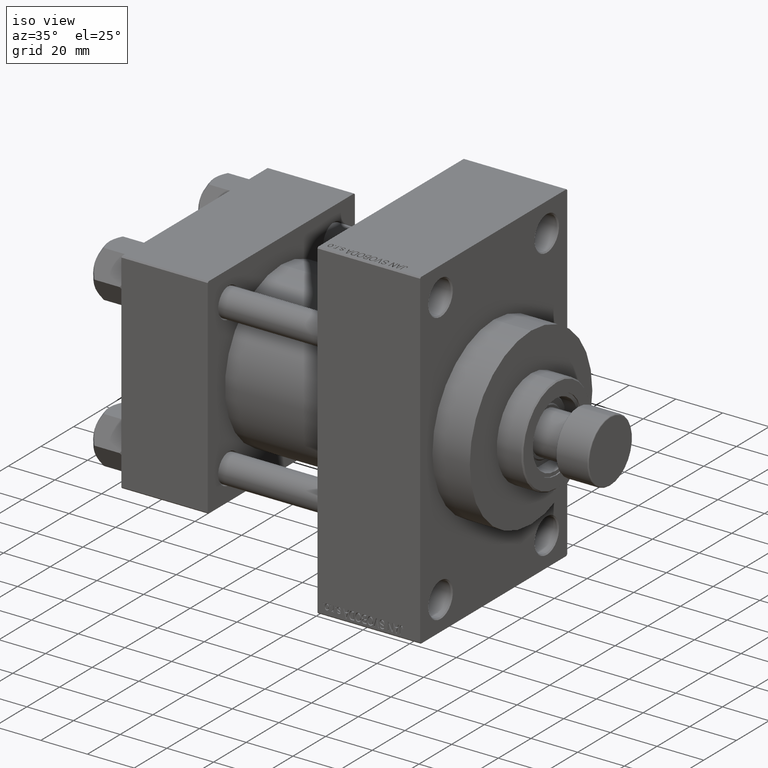
[diagram: clean part render]
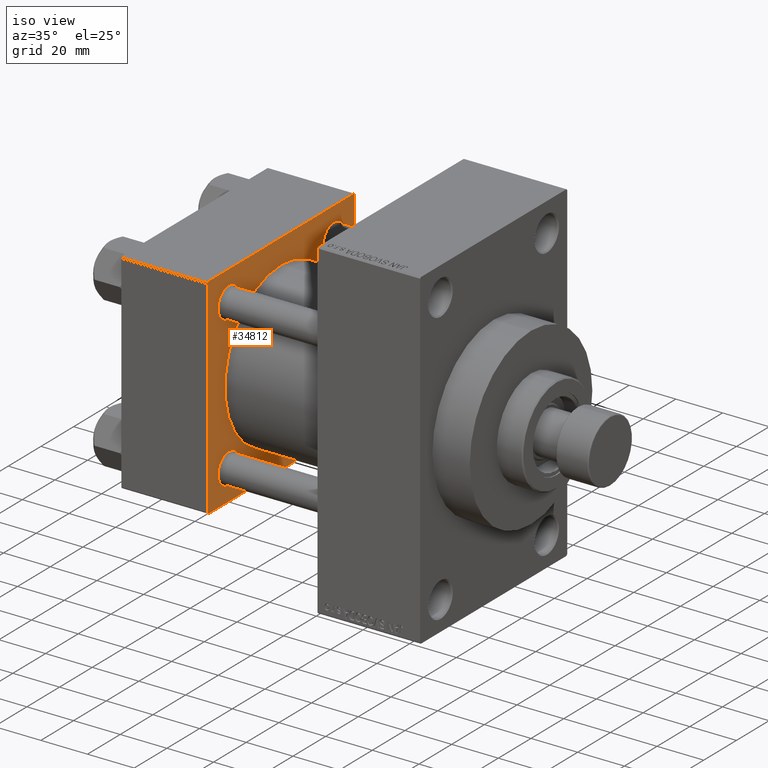
[diagram: same view with one face highlighted and labeled with its STEP entity id]
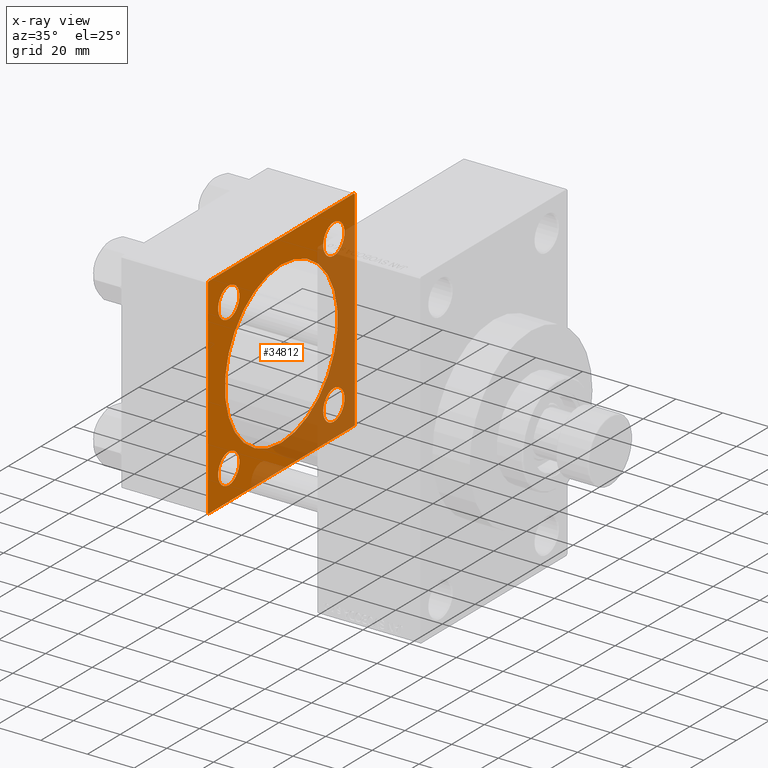
[diagram: x-ray of the same camera — body ghosted, the highlighted face saturated]
A machine part, iso view. The second image highlights one B-rep face of the part: STEP entity #34812.
The next image is the same camera in x-ray: the body ghosted, the highlighted face saturated — about 39% of this face is hidden behind the body in this view.
In plain terms, the highlighted planar face has unit normal (-1, 0, 0).
Its self-contained STEP definition (entity closure, byte-faithful):
#138 = DIRECTION ( 'NONE',  ( 0.000000000000000000, 0.000000000000000000, 1.000000000000000000 ) ) ;
#431 = DIRECTION ( 'NONE',  ( 0.000000000000000000, 0.000000000000000000, 1.000000000000000000 ) ) ;
#660 = EDGE_CURVE ( 'NONE', #42989, #23539, #40558, .T. ) ;
#1603 = DIRECTION ( 'NONE',  ( 0.000000000000000000, -0.7071067811865474617, 0.7071067811865474617 ) ) ;
#1711 = ORIENTED_EDGE ( 'NONE', *, *, #33288, .F. ) ;
#2009 = DIRECTION ( 'NONE',  ( -0.000000000000000000, 0.000000000000000000, 1.000000000000000000 ) ) ;
#2046 = DIRECTION ( 'NONE',  ( -1.000000000000000000, 0.000000000000000000, -0.000000000000000000 ) ) ;
#2251 = FACE_BOUND ( 'NONE', #13979, .T. ) ;
#2557 = CIRCLE ( 'NONE', #44162, 6.500000000000005329 ) ;
#2613 = DIRECTION ( 'NONE',  ( -1.000000000000000000, 0.000000000000000000, -0.000000000000000000 ) ) ;
#2652 = ORIENTED_EDGE ( 'NONE', *, *, #35427, .T. ) ;
#3013 = CIRCLE ( 'NONE', #31482, 6.499999999999950262 ) ;
#3442 = VECTOR ( 'NONE', #1603, 1000.000000000000114 ) ;
#3623 = LINE ( 'NONE', #10617, #11597 ) ;
#3728 = CARTESIAN_POINT ( 'NONE',  ( 37.00000000000000000, 32.14999999999999147, 25.64999999999999858 ) ) ;
#3822 = LINE ( 'NONE', #40695, #23364 ) ;
#3999 = DIRECTION ( 'NONE',  ( 1.000000000000000000, -0.000000000000000000, 0.000000000000000000 ) ) ;
#4181 = VERTEX_POINT ( 'NONE', #3728 ) ;
#4529 = EDGE_CURVE ( 'NONE', #33874, #6286, #11171, .T. ) ;
#4833 = VECTOR ( 'NONE', #24926, 1000.000000000000114 ) ;
#4974 = ORIENTED_EDGE ( 'NONE', *, *, #47462, .T. ) ;
#5203 = CARTESIAN_POINT ( 'NONE',  ( 37.00000000000000000, 44.49999999999998579, 45.00000000000001421 ) ) ;
#5278 = EDGE_LOOP ( 'NONE', ( #41322, #7133, #1711, #41857, #4974, #7514, #6397, #5755 ) ) ;
#5563 = AXIS2_PLACEMENT_3D ( 'NONE', #33154, #3999, #8109 ) ;
#5631 = CARTESIAN_POINT ( 'NONE',  ( 37.00000000000000000, 0.000000000000000000, 0.000000000000000000 ) ) ;
#5755 = ORIENTED_EDGE ( 'NONE', *, *, #28443, .T. ) ;
#6051 = DIRECTION ( 'NONE',  ( -0.000000000000000000, 0.7071067811865474617, 0.7071067811865474617 ) ) ;
#6106 = CARTESIAN_POINT ( 'NONE',  ( 37.00000000000000000, 1.622946243093158675E-15, -34.50000000000000000 ) ) ;
#6286 = VERTEX_POINT ( 'NONE', #25619 ) ;
#6397 = ORIENTED_EDGE ( 'NONE', *, *, #21825, .T. ) ;
#6716 = DIRECTION ( 'NONE',  ( 0.000000000000000000, 0.000000000000000000, 1.000000000000000000 ) ) ;
#7133 = ORIENTED_EDGE ( 'NONE', *, *, #16874, .T. ) ;
#7337 = ORIENTED_EDGE ( 'NONE', *, *, #34557, .T. ) ;
#7339 = CARTESIAN_POINT ( 'NONE',  ( 37.00000000000000000, 32.14999999999999147, 38.65000000000001279 ) ) ;
#7514 = ORIENTED_EDGE ( 'NONE', *, *, #30467, .T. ) ;
#7689 = DIRECTION ( 'NONE',  ( 0.000000000000000000, -1.000000000000000000, -1.541976423090495633E-16 ) ) ;
#8109 = DIRECTION ( 'NONE',  ( 0.000000000000000000, 0.000000000000000000, 1.000000000000000000 ) ) ;
#8194 = DIRECTION ( 'NONE',  ( -1.000000000000000000, 0.000000000000000000, -0.000000000000000000 ) ) ;
#8450 = EDGE_LOOP ( 'NONE', ( #21903, #15609 ) ) ;
#9726 = CARTESIAN_POINT ( 'NONE',  ( 37.00000000000000000, 44.99999999999998579, 45.00000000000001421 ) ) ;
#9790 = LINE ( 'NONE', #13626, #42137 ) ;
#10062 = DIRECTION ( 'NONE',  ( 0.000000000000000000, 0.7071067811865474617, -0.7071067811865474617 ) ) ;
#10503 = DIRECTION ( 'NONE',  ( 0.000000000000000000, -1.000000000000000000, -1.541976423090495387E-16 ) ) ;
#10617 = CARTESIAN_POINT ( 'NONE',  ( 37.00000000000000000, -45.00000000000000711, 45.00000000000000000 ) ) ;
#11171 = CIRCLE ( 'NONE', #11942, 6.499999999999950262 ) ;
#11597 = VECTOR ( 'NONE', #47487, 1000.000000000000000 ) ;
#11711 = VERTEX_POINT ( 'NONE', #20796 ) ;
#11759 = FACE_BOUND ( 'NONE', #8450, .T. ) ;
#11942 = AXIS2_PLACEMENT_3D ( 'NONE', #37578, #37807, #15882 ) ;
#12230 = CARTESIAN_POINT ( 'NONE',  ( 37.00000000000000000, 44.49999999999998579, 45.00000000000001421 ) ) ;
#12259 = CARTESIAN_POINT ( 'NONE',  ( 37.00000000000000000, 32.14999999999999147, -32.15000000000000568 ) ) ;
#12262 = ORIENTED_EDGE ( 'NONE', *, *, #4529, .T. ) ;
#12274 = AXIS2_PLACEMENT_3D ( 'NONE', #36786, #18493, #138 ) ;
#12307 = VECTOR ( 'NONE', #6051, 1000.000000000000114 ) ;
#12420 = CARTESIAN_POINT ( 'NONE',  ( 37.00000000000000000, 32.14999999999999147, 32.15000000000000568 ) ) ;
#13092 = CARTESIAN_POINT ( 'NONE',  ( 37.00000000000000000, 44.49999999999998579, -44.99999999999998579 ) ) ;
#13626 = CARTESIAN_POINT ( 'NONE',  ( 37.00000000000000000, 44.99999999999998579, 45.00000000000001421 ) ) ;
#13828 = LINE ( 'NONE', #12230, #3442 ) ;
#13979 = EDGE_LOOP ( 'NONE', ( #37432, #12262 ) ) ;
#14155 = CIRCLE ( 'NONE', #39535, 6.500000000000005329 ) ;
#14849 = CARTESIAN_POINT ( 'NONE',  ( 37.00000000000000000, 32.14999999999999147, -32.15000000000000568 ) ) ;
#15096 = VERTEX_POINT ( 'NONE', #29300 ) ;
#15194 = CARTESIAN_POINT ( 'NONE',  ( 37.00000000000000000, -44.49999999999995737, 45.00000000000000000 ) ) ;
#15294 = VERTEX_POINT ( 'NONE', #21067 ) ;
#15609 = ORIENTED_EDGE ( 'NONE', *, *, #15961, .F. ) ;
#15621 = DIRECTION ( 'NONE',  ( -1.000000000000000000, 0.000000000000000000, -0.000000000000000000 ) ) ;
#15882 = DIRECTION ( 'NONE',  ( 0.000000000000000000, 0.000000000000000000, 1.000000000000000000 ) ) ;
#15961 = EDGE_CURVE ( 'NONE', #33297, #32648, #33055, .T. ) ;
#16126 = ORIENTED_EDGE ( 'NONE', *, *, #34689, .T. ) ;
#16260 = DIRECTION ( 'NONE',  ( -1.000000000000000000, 0.000000000000000000, -0.000000000000000000 ) ) ;
#16499 = PLANE ( 'NONE',  #22583 ) ;
#16577 = VERTEX_POINT ( 'NONE', #46478 ) ;
#16874 = EDGE_CURVE ( 'NONE', #33996, #15096, #39062, .T. ) ;
#17065 = CARTESIAN_POINT ( 'NONE',  ( 37.00000000000000000, -45.00000000000000000, -44.49999999999995737 ) ) ;
#18256 = CARTESIAN_POINT ( 'NONE',  ( 37.00000000000000000, -44.49999999999998579, -45.00000000000000000 ) ) ;
#18409 = EDGE_CURVE ( 'NONE', #6286, #33874, #3013, .T. ) ;
#18474 = DIRECTION ( 'NONE',  ( -1.000000000000000000, 0.000000000000000000, -0.000000000000000000 ) ) ;
#18493 = DIRECTION ( 'NONE',  ( 1.000000000000000000, -0.000000000000000000, 0.000000000000000000 ) ) ;
#18779 = CARTESIAN_POINT ( 'NONE',  ( 37.00000000000000000, 32.14999999999999147, 32.15000000000000568 ) ) ;
#18781 = AXIS2_PLACEMENT_3D ( 'NONE', #35631, #2613, #19022 ) ;
#19022 = DIRECTION ( 'NONE',  ( 0.000000000000000000, 0.000000000000000000, 1.000000000000000000 ) ) ;
#19768 = AXIS2_PLACEMENT_3D ( 'NONE', #14849, #18474, #40143 ) ;
#20344 = FACE_BOUND ( 'NONE', #44199, .T. ) ;
#20796 = CARTESIAN_POINT ( 'NONE',  ( 37.00000000000000000, 44.99999999999998579, 44.50000000000001421 ) ) ;
#21067 = CARTESIAN_POINT ( 'NONE',  ( 37.00000000000000000, -44.49999999999995737, -45.00000000000000000 ) ) ;
#21079 = LINE ( 'NONE', #38908, #4833 ) ;
#21386 = LINE ( 'NONE', #18256, #45678 ) ;
#21825 = EDGE_CURVE ( 'NONE', #38344, #46288, #3623, .T. ) ;
#21903 = ORIENTED_EDGE ( 'NONE', *, *, #33111, .F. ) ;
#22322 = CARTESIAN_POINT ( 'NONE',  ( 37.00000000000000000, -32.14999999999997726, 38.64999999999996305 ) ) ;
#22583 = AXIS2_PLACEMENT_3D ( 'NONE', #5631, #16260, #2009 ) ;
#22856 = FACE_OUTER_BOUND ( 'NONE', #5278, .T. ) ;
#23364 = VECTOR ( 'NONE', #7689, 1000.000000000000000 ) ;
#23539 = VERTEX_POINT ( 'NONE', #36490 ) ;
#24926 = DIRECTION ( 'NONE',  ( -0.000000000000000000, -0.7071067811865425767, -0.7071067811865524577 ) ) ;
#25143 = ORIENTED_EDGE ( 'NONE', *, *, #660, .T. ) ;
#25161 = EDGE_LOOP ( 'NONE', ( #7337, #2652 ) ) ;
#25463 = CARTESIAN_POINT ( 'NONE',  ( 37.00000000000000000, -32.14999999999997726, -25.65000000000006253 ) ) ;
#25619 = CARTESIAN_POINT ( 'NONE',  ( 37.00000000000000000, -32.14999999999997726, 25.65000000000006253 ) ) ;
#26143 = CARTESIAN_POINT ( 'NONE',  ( 37.00000000000000000, -2.602085213965210642E-15, 34.50000000000000000 ) ) ;
#26223 = DIRECTION ( 'NONE',  ( -1.000000000000000000, 0.000000000000000000, -0.000000000000000000 ) ) ;
#28394 = DIRECTION ( 'NONE',  ( -1.000000000000000000, 0.000000000000000000, -0.000000000000000000 ) ) ;
#28443 = EDGE_CURVE ( 'NONE', #46288, #15294, #21386, .T. ) ;
#28976 = DIRECTION ( 'NONE',  ( 0.000000000000000000, 0.000000000000000000, -1.000000000000000000 ) ) ;
#29174 = EDGE_CURVE ( 'NONE', #23539, #42989, #30257, .T. ) ;
#29196 = VERTEX_POINT ( 'NONE', #15194 ) ;
#29300 = CARTESIAN_POINT ( 'NONE',  ( 37.00000000000000000, 44.99999999999998579, -44.49999999999995737 ) ) ;
#29559 = EDGE_CURVE ( 'NONE', #38273, #4181, #14155, .T. ) ;
#30201 = CIRCLE ( 'NONE', #5563, 34.50000000000000000 ) ;
#30257 = CIRCLE ( 'NONE', #47227, 6.500000000000005329 ) ;
#30467 = EDGE_CURVE ( 'NONE', #29196, #38344, #21079, .T. ) ;
#30536 = DIRECTION ( 'NONE',  ( 0.000000000000000000, 0.000000000000000000, 1.000000000000000000 ) ) ;
#31482 = AXIS2_PLACEMENT_3D ( 'NONE', #44789, #15621, #30536 ) ;
#31726 = VECTOR ( 'NONE', #28976, 1000.000000000000000 ) ;
#32242 = CARTESIAN_POINT ( 'NONE',  ( 37.00000000000000000, -32.14999999999997726, -32.15000000000001279 ) ) ;
#32588 = LINE ( 'NONE', #9726, #31726 ) ;
#32648 = VERTEX_POINT ( 'NONE', #26143 ) ;
#33055 = CIRCLE ( 'NONE', #12274, 34.50000000000000000 ) ;
#33111 = EDGE_CURVE ( 'NONE', #32648, #33297, #30201, .T. ) ;
#33154 = CARTESIAN_POINT ( 'NONE',  ( 37.00000000000000000, -2.602085213965210642E-15, 0.000000000000000000 ) ) ;
#33288 = EDGE_CURVE ( 'NONE', #11711, #15096, #32588, .T. ) ;
#33297 = VERTEX_POINT ( 'NONE', #6106 ) ;
#33491 = DIRECTION ( 'NONE',  ( 0.000000000000000000, 0.000000000000000000, 1.000000000000000000 ) ) ;
#33874 = VERTEX_POINT ( 'NONE', #22322 ) ;
#33996 = VERTEX_POINT ( 'NONE', #13092 ) ;
#34087 = CIRCLE ( 'NONE', #40265, 6.499999999999950262 ) ;
#34542 = CARTESIAN_POINT ( 'NONE',  ( 37.00000000000000000, 32.14999999999999147, -38.65000000000001279 ) ) ;
#34557 = EDGE_CURVE ( 'NONE', #16577, #38085, #34087, .T. ) ;
#34686 = EDGE_CURVE ( 'NONE', #33996, #15294, #3822, .T. ) ;
#34689 = EDGE_CURVE ( 'NONE', #4181, #38273, #2557, .T. ) ;
#34812 = ADVANCED_FACE ( 'NONE', ( #35033, #20344, #2251, #46360, #11759, #22856 ), #16499, .F. ) ;
#35033 = FACE_BOUND ( 'NONE', #25161, .T. ) ;
#35427 = EDGE_CURVE ( 'NONE', #38085, #16577, #39517, .T. ) ;
#35631 = CARTESIAN_POINT ( 'NONE',  ( 37.00000000000000000, -32.14999999999997726, -32.15000000000001279 ) ) ;
#36490 = CARTESIAN_POINT ( 'NONE',  ( 37.00000000000000000, 32.14999999999999147, -25.64999999999999858 ) ) ;
#36786 = CARTESIAN_POINT ( 'NONE',  ( 37.00000000000000000, -2.602085213965210642E-15, 0.000000000000000000 ) ) ;
#37432 = ORIENTED_EDGE ( 'NONE', *, *, #18409, .T. ) ;
#37578 = CARTESIAN_POINT ( 'NONE',  ( 37.00000000000000000, -32.14999999999997726, 32.15000000000001279 ) ) ;
#37807 = DIRECTION ( 'NONE',  ( -1.000000000000000000, 0.000000000000000000, -0.000000000000000000 ) ) ;
#38048 = EDGE_LOOP ( 'NONE', ( #16126, #47685 ) ) ;
#38085 = VERTEX_POINT ( 'NONE', #25463 ) ;
#38273 = VERTEX_POINT ( 'NONE', #7339 ) ;
#38344 = VERTEX_POINT ( 'NONE', #43398 ) ;
#38550 = EDGE_CURVE ( 'NONE', #11711, #45650, #13828, .T. ) ;
#38584 = CARTESIAN_POINT ( 'NONE',  ( 37.00000000000000000, 44.99999999999998579, -44.49999999999998579 ) ) ;
#38908 = CARTESIAN_POINT ( 'NONE',  ( 37.00000000000000000, -45.00000000000000711, 44.49999999999997158 ) ) ;
#39062 = LINE ( 'NONE', #38584, #12307 ) ;
#39228 = ORIENTED_EDGE ( 'NONE', *, *, #29174, .T. ) ;
#39517 = CIRCLE ( 'NONE', #18781, 6.499999999999950262 ) ;
#39535 = AXIS2_PLACEMENT_3D ( 'NONE', #12420, #2046, #46168 ) ;
#40143 = DIRECTION ( 'NONE',  ( 0.000000000000000000, 0.000000000000000000, 1.000000000000000000 ) ) ;
#40265 = AXIS2_PLACEMENT_3D ( 'NONE', #32242, #28394, #6716 ) ;
#40558 = CIRCLE ( 'NONE', #19768, 6.500000000000005329 ) ;
#40695 = CARTESIAN_POINT ( 'NONE',  ( 37.00000000000000000, 44.99999999999998579, -44.99999999999998579 ) ) ;
#41322 = ORIENTED_EDGE ( 'NONE', *, *, #34686, .F. ) ;
#41857 = ORIENTED_EDGE ( 'NONE', *, *, #38550, .T. ) ;
#42137 = VECTOR ( 'NONE', #10503, 1000.000000000000000 ) ;
#42989 = VERTEX_POINT ( 'NONE', #34542 ) ;
#43398 = CARTESIAN_POINT ( 'NONE',  ( 37.00000000000000000, -45.00000000000000711, 44.49999999999997158 ) ) ;
#44162 = AXIS2_PLACEMENT_3D ( 'NONE', #18779, #26223, #431 ) ;
#44199 = EDGE_LOOP ( 'NONE', ( #25143, #39228 ) ) ;
#44789 = CARTESIAN_POINT ( 'NONE',  ( 37.00000000000000000, -32.14999999999997726, 32.15000000000001279 ) ) ;
#45650 = VERTEX_POINT ( 'NONE', #5203 ) ;
#45678 = VECTOR ( 'NONE', #10062, 1000.000000000000114 ) ;
#46168 = DIRECTION ( 'NONE',  ( 0.000000000000000000, 0.000000000000000000, 1.000000000000000000 ) ) ;
#46288 = VERTEX_POINT ( 'NONE', #17065 ) ;
#46360 = FACE_BOUND ( 'NONE', #38048, .T. ) ;
#46478 = CARTESIAN_POINT ( 'NONE',  ( 37.00000000000000000, -32.14999999999997726, -38.64999999999996305 ) ) ;
#47227 = AXIS2_PLACEMENT_3D ( 'NONE', #12259, #8194, #33491 ) ;
#47462 = EDGE_CURVE ( 'NONE', #45650, #29196, #9790, .T. ) ;
#47487 = DIRECTION ( 'NONE',  ( 0.000000000000000000, 7.709882115452476934E-17, -1.000000000000000000 ) ) ;
#47685 = ORIENTED_EDGE ( 'NONE', *, *, #29559, .T. ) ;